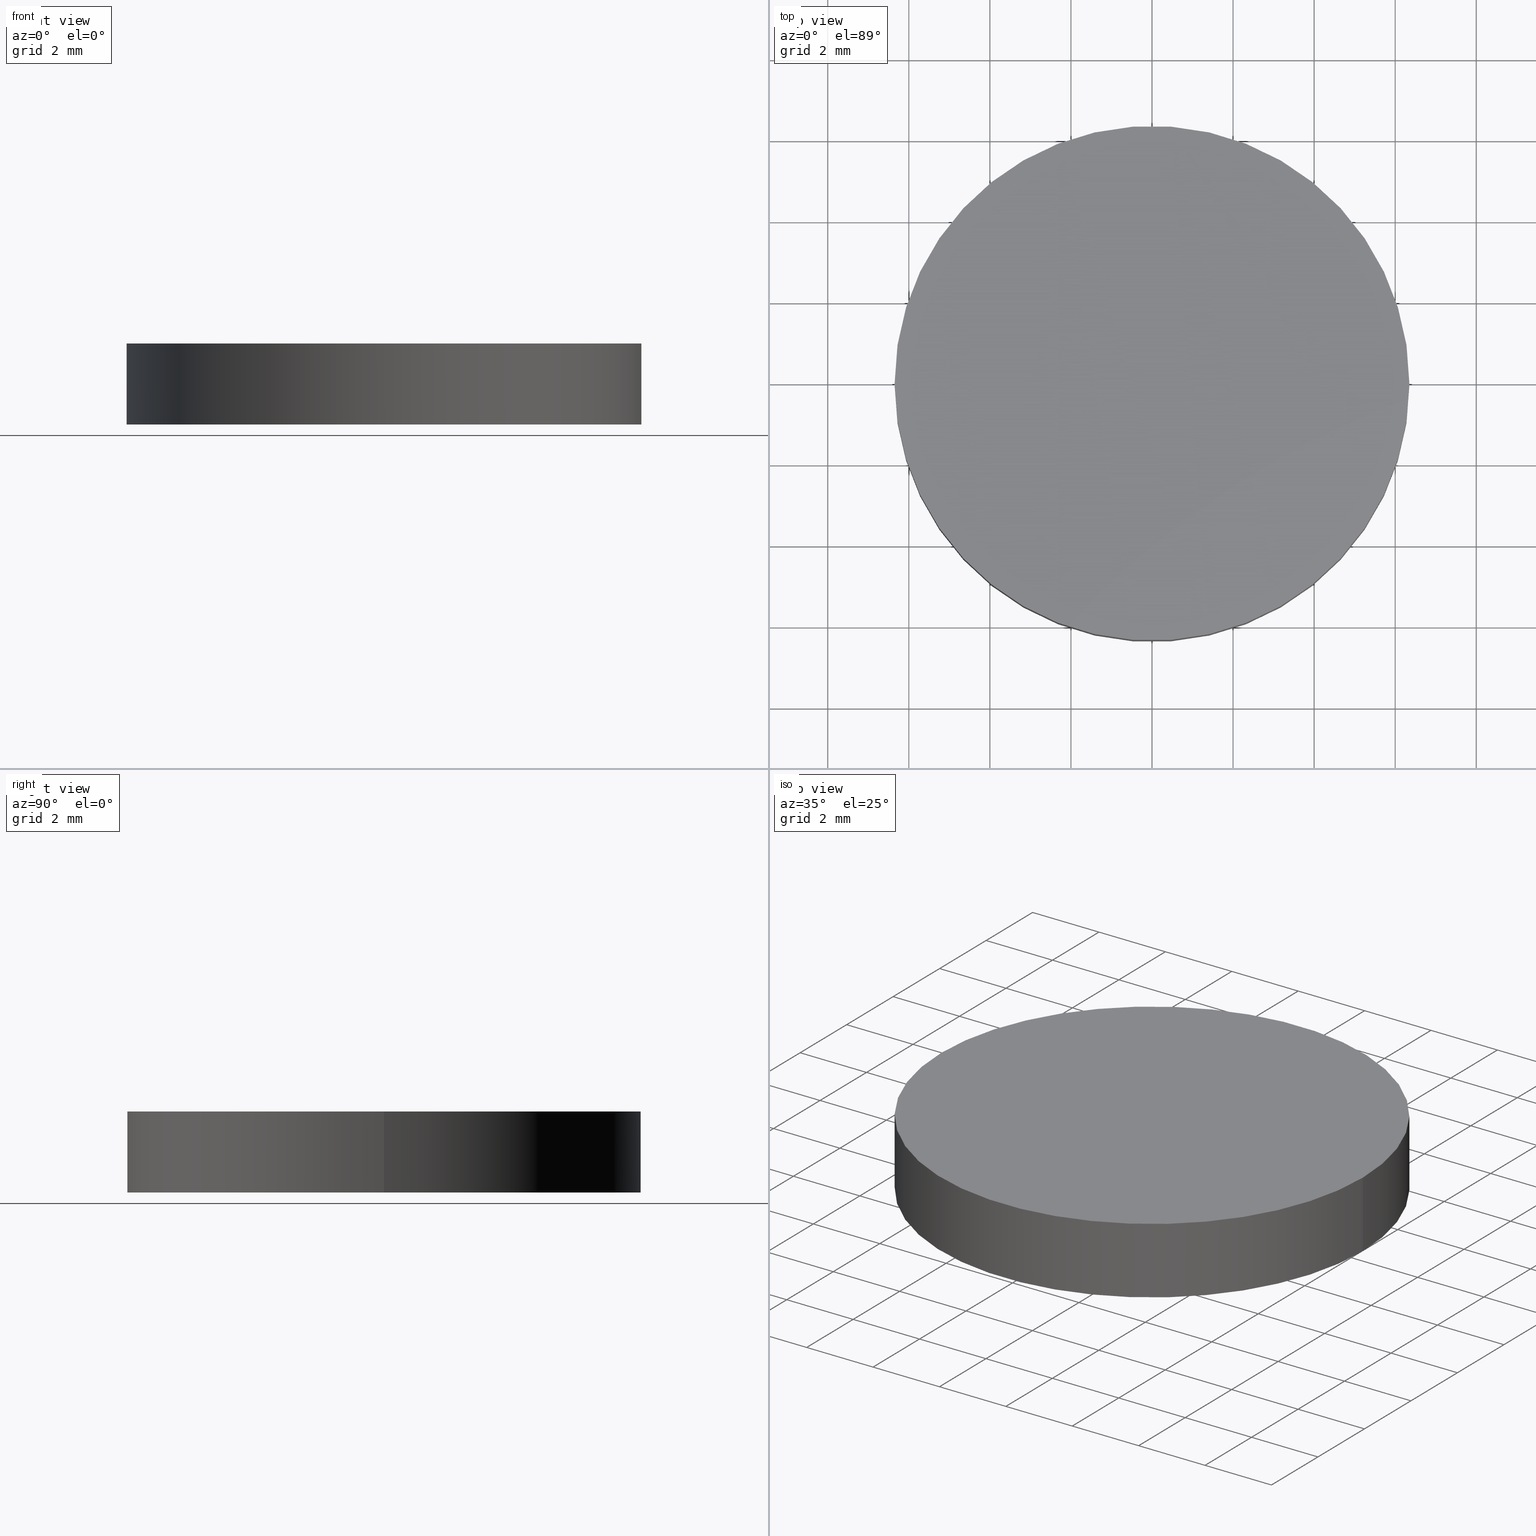
[diagram: canonical four-view strip — front | top / right | iso, engineering-drawing reading convention]
A machine part, canonical four-view strip (front | top / right | iso — engineering-drawing reading convention). The complete STEP part file that produces these views, byte-faithful:
ISO-10303-21;
HEADER;
FILE_DESCRIPTION (( 'STEP AP214' ),
    '1' );
FILE_NAME ('180003.STEP',
    '2019-07-09T05:14:25',
    ( 'user' ),
    ( '΢���й�' ),
    'SwSTEP 2.0',
    'SolidWorks 2016',
    '' );
FILE_SCHEMA (( 'AUTOMOTIVE_DESIGN' ));
ENDSEC;

DATA;
#1 = MECHANICAL_DESIGN_GEOMETRIC_PRESENTATION_REPRESENTATION (  '', ( #80 ), #10 ) ;
#2 = EDGE_LOOP ( 'NONE', ( #102, #8 ) ) ;
#3 = FACE_OUTER_BOUND ( 'NONE', #24, .T. ) ;
#4 = EDGE_CURVE ( 'NONE', #79, #111, #70, .T. ) ;
#5 = ADVANCED_FACE ( 'NONE', ( #84 ), #36, .T. ) ;
#6 = ORIENTED_EDGE ( 'NONE', *, *, #29, .T. ) ;
#7 = CARTESIAN_POINT ( 'NONE',  ( 0.0000000000000000000, 0.0000000000000000000, 2.000000000000000000 ) ) ;
#8 = ORIENTED_EDGE ( 'NONE', *, *, #15, .F. ) ;
#9 = DIRECTION ( 'NONE',  ( 1.000000000000000000, 0.0000000000000000000, 0.0000000000000000000 ) ) ;
#10 =( GEOMETRIC_REPRESENTATION_CONTEXT ( 3 ) GLOBAL_UNCERTAINTY_ASSIGNED_CONTEXT ( ( #78 ) ) GLOBAL_UNIT_ASSIGNED_CONTEXT ( ( #13, #87, #27 ) ) REPRESENTATION_CONTEXT ( 'NONE', 'WORKASPACE' ) );
#11 = DIRECTION ( 'NONE',  ( -1.000000000000000000, 0.0000000000000000000, 0.0000000000000000000 ) ) ;
#12 = AXIS2_PLACEMENT_3D ( 'NONE', #63, #23, #11 ) ;
#13 =( LENGTH_UNIT ( ) NAMED_UNIT ( * ) SI_UNIT ( .MILLI., .METRE. ) );
#14 = PRESENTATION_LAYER_ASSIGNMENT (  '', '', ( #80 ) ) ;
#15 = EDGE_CURVE ( 'NONE', #138, #111, #31, .T. ) ;
#16 = COLOUR_RGB ( '',1.000000000000000000, 1.000000000000000000, 1.000000000000000000 ) ;
#17 = AXIS2_PLACEMENT_3D ( 'NONE', #136, #73, #9 ) ;
#18 = CYLINDRICAL_SURFACE ( 'NONE', #12, 6.349999999999999600 ) ;
#19 = EDGE_CURVE ( 'NONE', #79, #89, #41, .T. ) ;
#20 = STYLED_ITEM ( 'NONE', ( #97 ), #134 ) ;
#21 = DIRECTION ( 'NONE',  ( 0.0000000000000000000, 0.0000000000000000000, 1.000000000000000000 ) ) ;
#22 = CARTESIAN_POINT ( 'NONE',  ( 0.0000000000000000000, 0.0000000000000000000, 2.000000000000000000 ) ) ;
#23 = DIRECTION ( 'NONE',  ( -0.0000000000000000000, -0.0000000000000000000, -1.000000000000000000 ) ) ;
#24 = EDGE_LOOP ( 'NONE', ( #37, #6 ) ) ;
#25 = CARTESIAN_POINT ( 'NONE',  ( 6.349999999999999600, 7.776507174585692200E-016, 0.0000000000000000000 ) ) ;
#26 = AXIS2_PLACEMENT_3D ( 'NONE', #42, #109, #53 ) ;
#27 =( NAMED_UNIT ( * ) SI_UNIT ( $, .STERADIAN. ) SOLID_ANGLE_UNIT ( ) );
#28 = ORIENTED_EDGE ( 'NONE', *, *, #29, .F. ) ;
#29 = EDGE_CURVE ( 'NONE', #89, #79, #47, .T. ) ;
#30 = PRODUCT ( '180003', '180003', '', ( #45 ) ) ;
#31 = CIRCLE ( 'NONE', #67, 6.349999999999999600 ) ;
#32 = DIRECTION ( 'NONE',  ( 0.0000000000000000000, 0.0000000000000000000, 1.000000000000000000 ) ) ;
#33 = AXIS2_PLACEMENT_3D ( 'NONE', #86, #35, #104 ) ;
#34 =( NAMED_UNIT ( * ) PLANE_ANGLE_UNIT ( ) SI_UNIT ( $, .RADIAN. ) );
#35 = DIRECTION ( 'NONE',  ( 0.0000000000000000000, 0.0000000000000000000, 1.000000000000000000 ) ) ;
#36 = CYLINDRICAL_SURFACE ( 'NONE', #88, 6.349999999999999600 ) ;
#37 = ORIENTED_EDGE ( 'NONE', *, *, #19, .T. ) ;
#38 = VECTOR ( 'NONE', #72, 1000.000000000000000 ) ;
#39 = PRODUCT_DEFINITION ( 'δ֪', '', #48, #59 ) ;
#40 = EDGE_CURVE ( 'NONE', #89, #138, #122, .T. ) ;
#41 = CIRCLE ( 'NONE', #26, 6.349999999999999600 ) ;
#42 = CARTESIAN_POINT ( 'NONE',  ( 0.0000000000000000000, 0.0000000000000000000, 2.000000000000000000 ) ) ;
#43 = CARTESIAN_POINT ( 'NONE',  ( 6.349999999999999600, 7.776507174585692200E-016, 2.000000000000000000 ) ) ;
#44 = FILL_AREA_STYLE_COLOUR ( '', #16 ) ;
#45 = PRODUCT_CONTEXT ( 'NONE', #127, 'mechanical' ) ;
#46 = MECHANICAL_DESIGN_GEOMETRIC_PRESENTATION_REPRESENTATION (  '', ( #20 ), #128 ) ;
#47 = CIRCLE ( 'NONE', #17, 6.349999999999999600 ) ;
#48 = PRODUCT_DEFINITION_FORMATION_WITH_SPECIFIED_SOURCE ( '�κ�', '', #30, .NOT_KNOWN. ) ;
#49 = SURFACE_STYLE_FILL_AREA ( #66 ) ;
#50 = ADVANCED_FACE ( 'NONE', ( #3 ), #83, .T. ) ;
#51 = EDGE_LOOP ( 'NONE', ( #105, #106, #93, #117 ) ) ;
#52 = DIRECTION ( 'NONE',  ( 0.0000000000000000000, 0.0000000000000000000, 1.000000000000000000 ) ) ;
#53 = DIRECTION ( 'NONE',  ( 1.000000000000000000, 0.0000000000000000000, 0.0000000000000000000 ) ) ;
#54 = PRODUCT_RELATED_PRODUCT_CATEGORY ( 'part', '', ( #30 ) ) ;
#55 = SURFACE_SIDE_STYLE ('',( #118 ) ) ;
#56 = EDGE_CURVE ( 'NONE', #111, #138, #114, .T. ) ;
#57 = APPLICATION_PROTOCOL_DEFINITION ( 'draft international standard', 'automotive_design', 1998, #116 ) ;
#58 = AXIS2_PLACEMENT_3D ( 'NONE', #22, #32, #100 ) ;
#59 = PRODUCT_DEFINITION_CONTEXT ( 'detailed design', #116, 'design' ) ;
#60 = DIRECTION ( 'NONE',  ( -0.0000000000000000000, -0.0000000000000000000, -1.000000000000000000 ) ) ;
#61 = CARTESIAN_POINT ( 'NONE',  ( 6.349999999999999600, 7.776507174585692200E-016, 2.000000000000000000 ) ) ;
#62 = ORIENTED_EDGE ( 'NONE', *, *, #4, .F. ) ;
#63 = CARTESIAN_POINT ( 'NONE',  ( 0.0000000000000000000, 0.0000000000000000000, 2.000000000000000000 ) ) ;
#64 = FACE_OUTER_BOUND ( 'NONE', #2, .T. ) ;
#65 =( LENGTH_UNIT ( ) NAMED_UNIT ( * ) SI_UNIT ( .MILLI., .METRE. ) );
#66 = FILL_AREA_STYLE ('',( #101 ) ) ;
#67 = AXIS2_PLACEMENT_3D ( 'NONE', #82, #21, #92 ) ;
#68 = VECTOR ( 'NONE', #60, 1000.000000000000000 ) ;
#69 = PRESENTATION_LAYER_ASSIGNMENT (  '', '', ( #20 ) ) ;
#70 = LINE ( 'NONE', #133, #68 ) ;
#71 = DIRECTION ( 'NONE',  ( -1.000000000000000000, 0.0000000000000000000, 0.0000000000000000000 ) ) ;
#72 = DIRECTION ( 'NONE',  ( -0.0000000000000000000, -0.0000000000000000000, -1.000000000000000000 ) ) ;
#73 = DIRECTION ( 'NONE',  ( 0.0000000000000000000, 0.0000000000000000000, 1.000000000000000000 ) ) ;
#74 = DIRECTION ( 'NONE',  ( 0.0000000000000000000, 0.0000000000000000000, 1.000000000000000000 ) ) ;
#75 =( NAMED_UNIT ( * ) SI_UNIT ( $, .STERADIAN. ) SOLID_ANGLE_UNIT ( ) );
#76 = SURFACE_STYLE_USAGE ( .BOTH. , #140 ) ;
#77 = FACE_OUTER_BOUND ( 'NONE', #51, .T. ) ;
#78 = UNCERTAINTY_MEASURE_WITH_UNIT (LENGTH_MEASURE( 1.000000000000000100E-005 ), #13, 'distance_accuracy_value', 'NONE');
#79 = VERTEX_POINT ( 'NONE', #123 ) ;
#80 = STYLED_ITEM ( 'NONE', ( #130 ), #98 ) ;
#81 = UNCERTAINTY_MEASURE_WITH_UNIT (LENGTH_MEASURE( 1.000000000000000100E-005 ), #94, 'distance_accuracy_value', 'NONE');
#82 = CARTESIAN_POINT ( 'NONE',  ( 0.0000000000000000000, 0.0000000000000000000, 0.0000000000000000000 ) ) ;
#83 = PLANE ( 'NONE',  #58 ) ;
#84 = FACE_OUTER_BOUND ( 'NONE', #121, .T. ) ;
#85 = CARTESIAN_POINT ( 'NONE',  ( -6.349999999999999600, 0.0000000000000000000, 0.0000000000000000000 ) ) ;
#86 = CARTESIAN_POINT ( 'NONE',  ( 0.0000000000000000000, 0.0000000000000000000, 0.0000000000000000000 ) ) ;
#87 =( NAMED_UNIT ( * ) PLANE_ANGLE_UNIT ( ) SI_UNIT ( $, .RADIAN. ) );
#88 = AXIS2_PLACEMENT_3D ( 'NONE', #7, #119, #71 ) ;
#89 = VERTEX_POINT ( 'NONE', #43 ) ;
#90 = ADVANCED_FACE ( 'NONE', ( #64 ), #112, .F. ) ;
#91 = CLOSED_SHELL ( 'NONE', ( #5, #129, #50, #90 ) ) ;
#92 = DIRECTION ( 'NONE',  ( 1.000000000000000000, 0.0000000000000000000, 0.0000000000000000000 ) ) ;
#93 = ORIENTED_EDGE ( 'NONE', *, *, #4, .T. ) ;
#94 =( LENGTH_UNIT ( ) NAMED_UNIT ( * ) SI_UNIT ( .MILLI., .METRE. ) );
#95 = UNCERTAINTY_MEASURE_WITH_UNIT (LENGTH_MEASURE( 1.000000000000000100E-005 ), #65, 'distance_accuracy_value', 'NONE');
#96 = ORIENTED_EDGE ( 'NONE', *, *, #40, .T. ) ;
#97 = PRESENTATION_STYLE_ASSIGNMENT (( #125 ) ) ;
#98 = ADVANCED_BREP_SHAPE_REPRESENTATION ( '180003', ( #134, #33 ), #126 ) ;
#99 = DIRECTION ( 'NONE',  ( 1.000000000000000000, 0.0000000000000000000, 0.0000000000000000000 ) ) ;
#100 = DIRECTION ( 'NONE',  ( 1.000000000000000000, 0.0000000000000000000, -0.0000000000000000000 ) ) ;
#101 = FILL_AREA_STYLE_COLOUR ( '', #124 ) ;
#102 = ORIENTED_EDGE ( 'NONE', *, *, #56, .F. ) ;
#103 =( NAMED_UNIT ( * ) SI_UNIT ( $, .STERADIAN. ) SOLID_ANGLE_UNIT ( ) );
#104 = DIRECTION ( 'NONE',  ( 1.000000000000000000, 0.0000000000000000000, 0.0000000000000000000 ) ) ;
#105 = ORIENTED_EDGE ( 'NONE', *, *, #40, .F. ) ;
#106 = ORIENTED_EDGE ( 'NONE', *, *, #19, .F. ) ;
#107 = AXIS2_PLACEMENT_3D ( 'NONE', #108, #52, #120 ) ;
#108 = CARTESIAN_POINT ( 'NONE',  ( 0.0000000000000000000, 0.0000000000000000000, 0.0000000000000000000 ) ) ;
#109 = DIRECTION ( 'NONE',  ( 0.0000000000000000000, 0.0000000000000000000, 1.000000000000000000 ) ) ;
#110 = AXIS2_PLACEMENT_3D ( 'NONE', #137, #74, #99 ) ;
#111 = VERTEX_POINT ( 'NONE', #85 ) ;
#112 = PLANE ( 'NONE',  #107 ) ;
#113 = FILL_AREA_STYLE ('',( #44 ) ) ;
#114 = CIRCLE ( 'NONE', #110, 6.349999999999999600 ) ;
#115 = APPLICATION_PROTOCOL_DEFINITION ( 'draft international standard', 'automotive_design', 1998, #127 ) ;
#116 = APPLICATION_CONTEXT ( 'automotive_design' ) ;
#117 = ORIENTED_EDGE ( 'NONE', *, *, #56, .T. ) ;
#118 = SURFACE_STYLE_FILL_AREA ( #113 ) ;
#119 = DIRECTION ( 'NONE',  ( -0.0000000000000000000, -0.0000000000000000000, -1.000000000000000000 ) ) ;
#120 = DIRECTION ( 'NONE',  ( 1.000000000000000000, 0.0000000000000000000, -0.0000000000000000000 ) ) ;
#121 = EDGE_LOOP ( 'NONE', ( #28, #96, #132, #62 ) ) ;
#122 = LINE ( 'NONE', #61, #38 ) ;
#123 = CARTESIAN_POINT ( 'NONE',  ( -6.349999999999999600, 0.0000000000000000000, 2.000000000000000000 ) ) ;
#124 = COLOUR_RGB ( '',1.000000000000000000, 1.000000000000000000, 1.000000000000000000 ) ;
#125 = SURFACE_STYLE_USAGE ( .BOTH. , #55 ) ;
#126 =( GEOMETRIC_REPRESENTATION_CONTEXT ( 3 ) GLOBAL_UNCERTAINTY_ASSIGNED_CONTEXT ( ( #81 ) ) GLOBAL_UNIT_ASSIGNED_CONTEXT ( ( #94, #34, #103 ) ) REPRESENTATION_CONTEXT ( 'NONE', 'WORKASPACE' ) );
#127 = APPLICATION_CONTEXT ( 'automotive_design' ) ;
#128 =( GEOMETRIC_REPRESENTATION_CONTEXT ( 3 ) GLOBAL_UNCERTAINTY_ASSIGNED_CONTEXT ( ( #95 ) ) GLOBAL_UNIT_ASSIGNED_CONTEXT ( ( #65, #139, #75 ) ) REPRESENTATION_CONTEXT ( 'NONE', 'WORKASPACE' ) );
#129 = ADVANCED_FACE ( 'NONE', ( #77 ), #18, .T. ) ;
#130 = PRESENTATION_STYLE_ASSIGNMENT (( #76 ) ) ;
#131 = SHAPE_DEFINITION_REPRESENTATION ( #135, #98 ) ;
#132 = ORIENTED_EDGE ( 'NONE', *, *, #15, .T. ) ;
#133 = CARTESIAN_POINT ( 'NONE',  ( -6.349999999999999600, 0.0000000000000000000, 2.000000000000000000 ) ) ;
#134 = MANIFOLD_SOLID_BREP ( '͹̨-����1', #91 ) ;
#135 = PRODUCT_DEFINITION_SHAPE ( 'NONE', 'NONE',  #39 ) ;
#136 = CARTESIAN_POINT ( 'NONE',  ( 0.0000000000000000000, 0.0000000000000000000, 2.000000000000000000 ) ) ;
#137 = CARTESIAN_POINT ( 'NONE',  ( 0.0000000000000000000, 0.0000000000000000000, 0.0000000000000000000 ) ) ;
#138 = VERTEX_POINT ( 'NONE', #25 ) ;
#139 =( NAMED_UNIT ( * ) PLANE_ANGLE_UNIT ( ) SI_UNIT ( $, .RADIAN. ) );
#140 = SURFACE_SIDE_STYLE ('',( #49 ) ) ;
ENDSEC;
END-ISO-10303-21;
